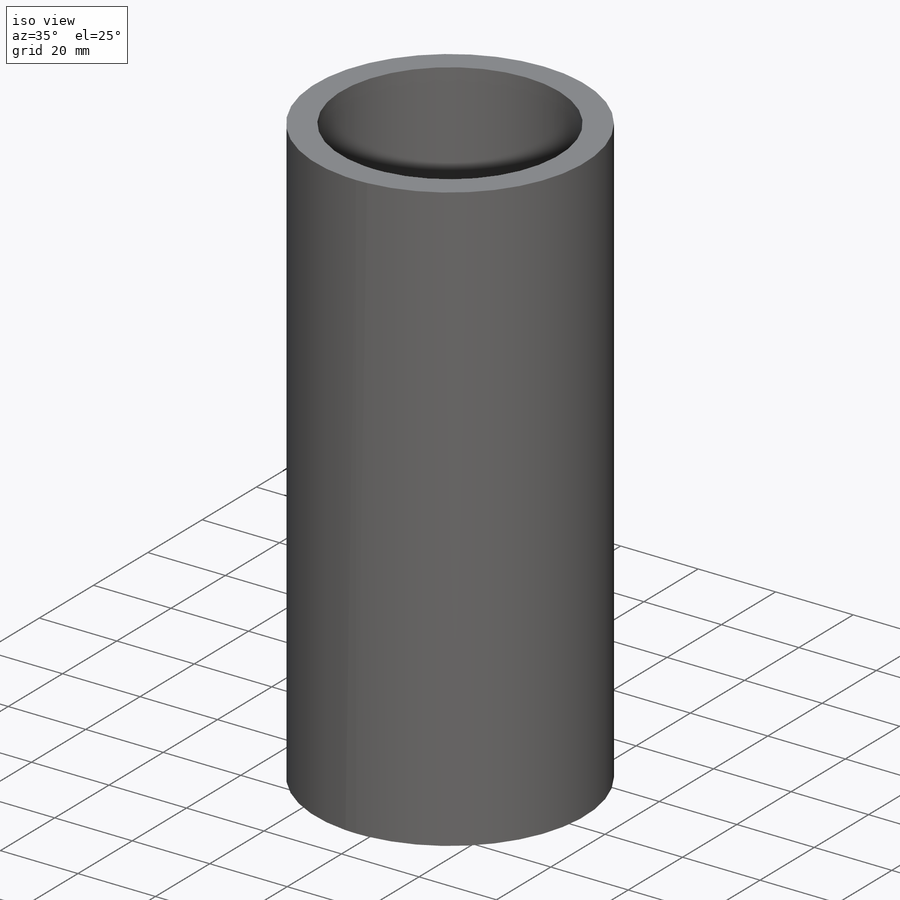
[diagram: iso view]
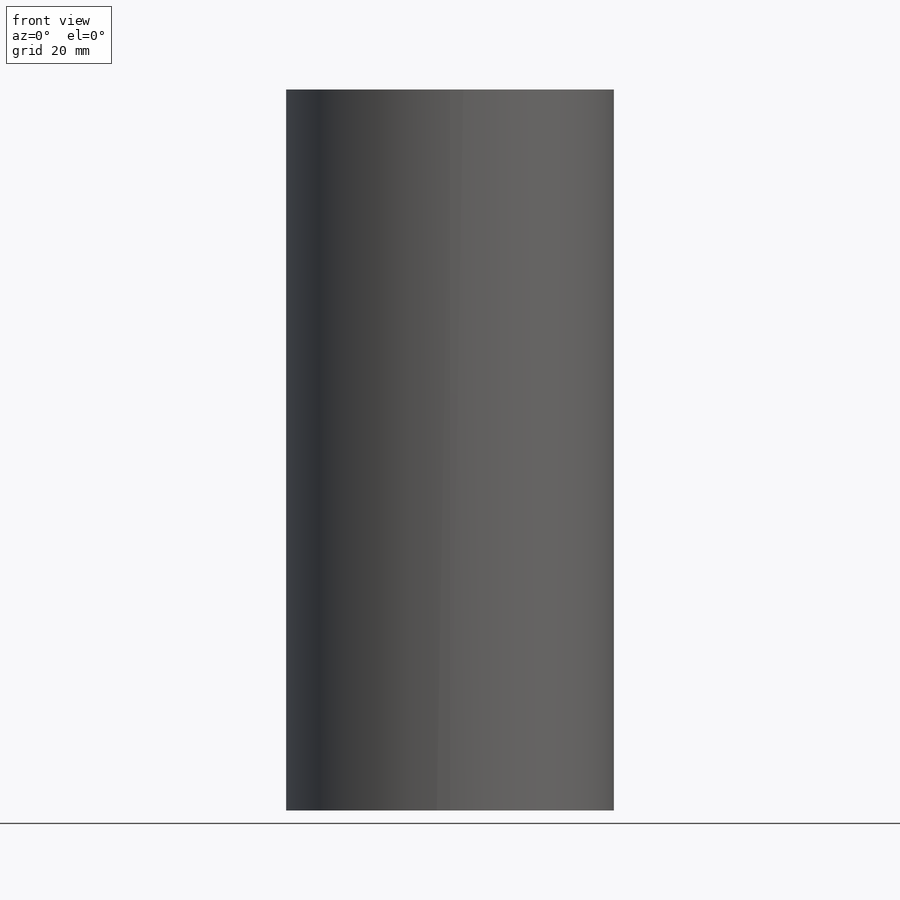
[diagram: front view]
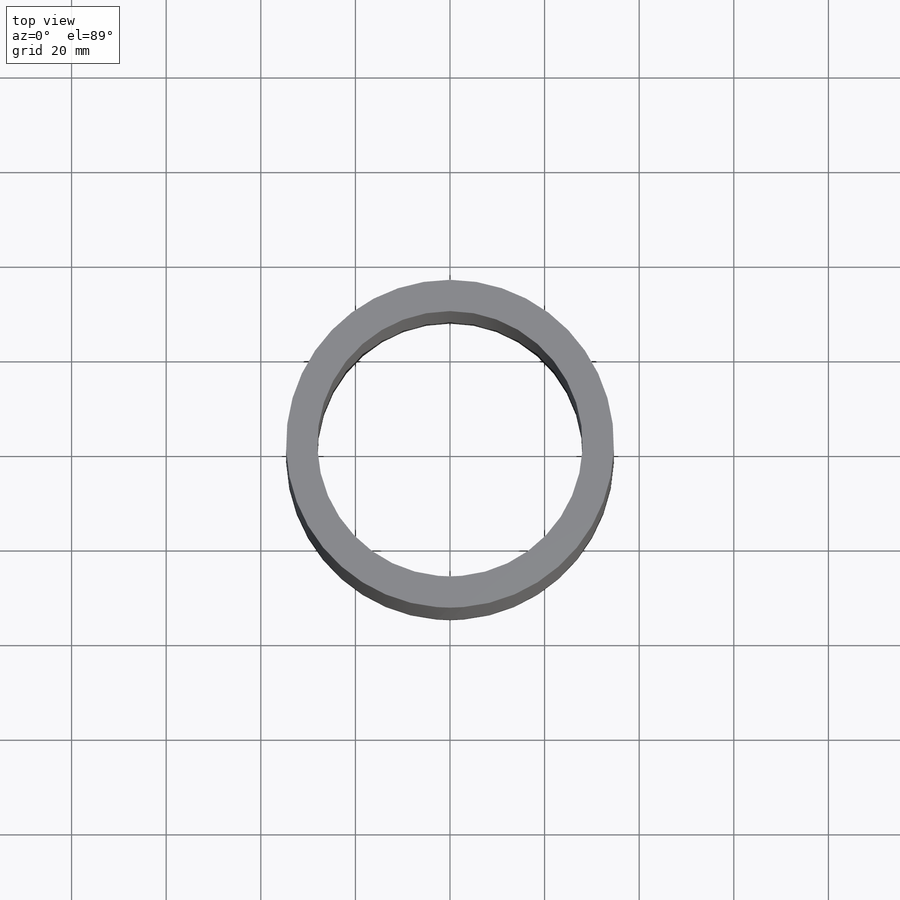
[diagram: top view]
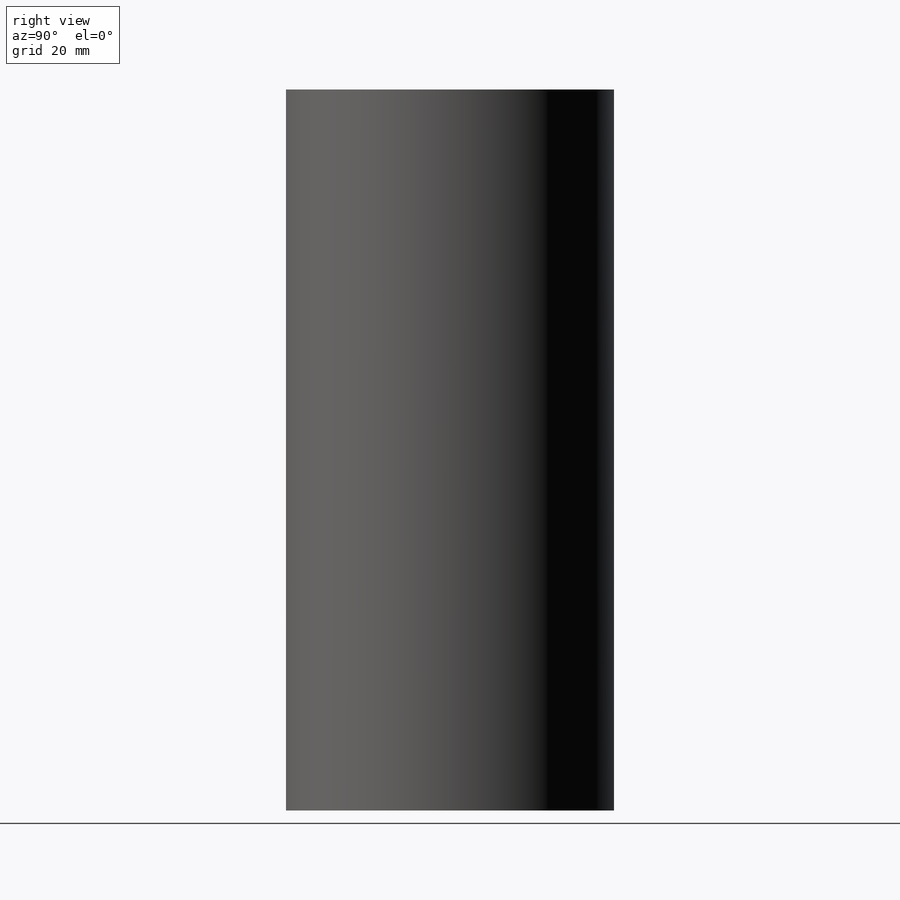
[diagram: right view]
SOLIDWORKS PART (.sldprt)
format: sldprt  version: not decoded by parser v0  size: 159,744 bytes
history: native  units: mm
features: sketch x4, extrude x2, cut_extrude x2, material x1, pattern_circular x1 (+11 scaffold rows collapsed)
feature tree (21):
  scaffold x11  (default folders/planes/origin — collapsed)
  material  "Acrylic (Medium-high impact)"
  sketch  "Sketch1"  dims[D1=69.3166mm D2=56.0832mm]
  extrude  "Boss-Extrude1"  Depth=152.4mm
  sketch  "Sketch2"  dims[D1=~61.437774mm]
  cut_extrude  "Cut-Extrude1"  Depth=50.8mm
  sketch  "Sketch3"  dims[D1=12.7mm D2=6.35mm D3=28.0416mm D4=6.35mm]
  extrude  "Boss-Extrude3"  Depth=127mm
  sketch  "Sketch4"  dims[D1=12.7mm]
  cut_extrude  "Cut-Extrude2"  [1 undecoded]
  pattern_circular  "CirPattern8"  Count=2 Angle=180deg
decode coverage: 8 of 9 modeling features carry decoded parameters
note: ~ marks probable driven/reference dimensions
note: 1 parameter value undecoded
note: suppression state not decoded; provenance and decode notes live in map.json
